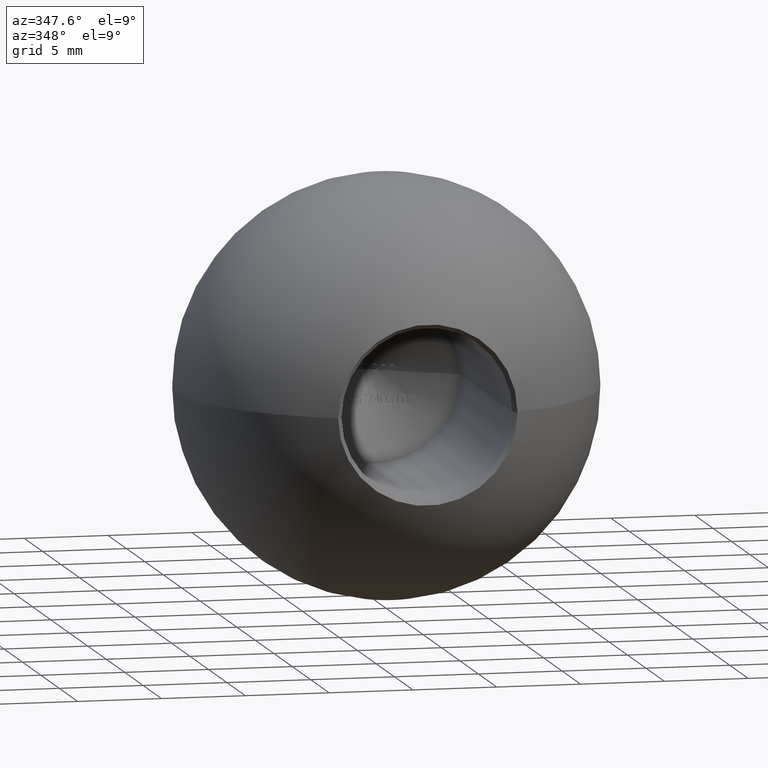
[diagram: clean part render]
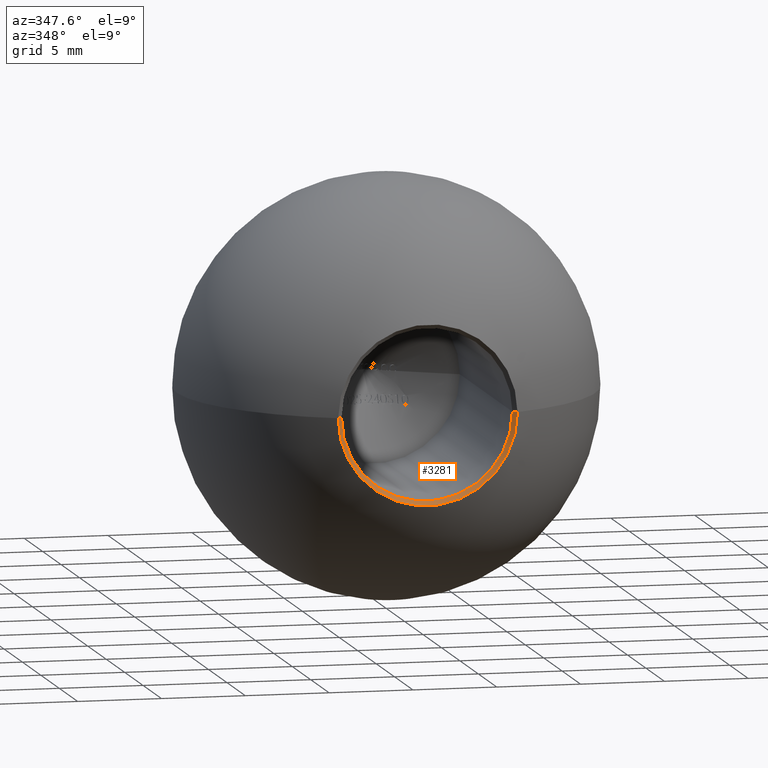
[diagram: same view with one face highlighted and labeled with its STEP entity id]
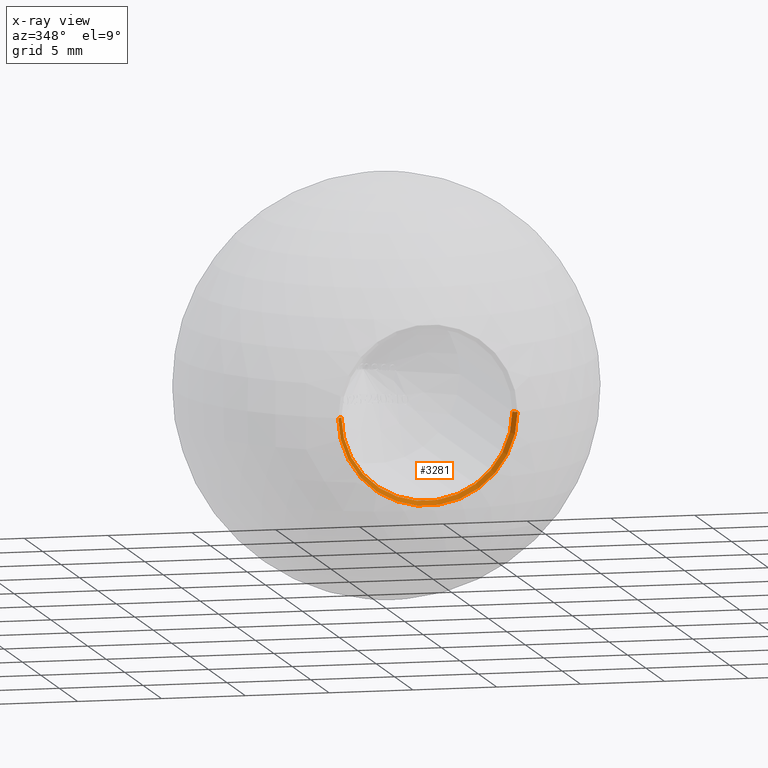
[diagram: x-ray of the same camera — body ghosted, the highlighted face saturated]
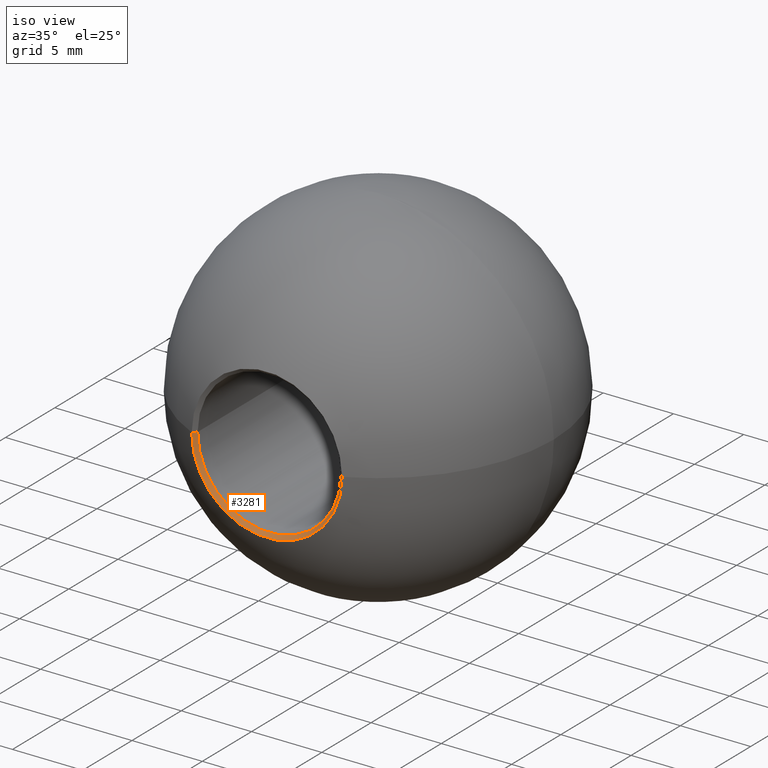
[diagram: same view with one face highlighted and labeled with its STEP entity id]
A machine part, auxiliary view. The second image highlights one B-rep face of the part: STEP entity #3281.
The next image is the same camera in x-ray: the body ghosted, the highlighted face saturated — about 0% of this face is hidden behind the body in this view.
A second angle (iso view) of the same face is appended — the face is thin or edge-on in the first view.
In plain terms, the highlighted conical surface has half-angle 45 deg.
Its self-contained STEP definition (entity closure, byte-faithful):
#258 = CARTESIAN_POINT ( 'NONE',  ( -5.100000000000003200, -11.04723417478808600, 6.398779525544925700E-016 ) ) ;
#396 = DIRECTION ( 'NONE',  ( -4.583387323490006000E-019, -1.000000000000000000, -0.0000000000000000000 ) ) ;
#1581 = CARTESIAN_POINT ( 'NONE',  ( -1.090719414508469100E-017, -11.29723417478809300, 0.0000000000000000000 ) ) ;
#2239 = VERTEX_POINT ( 'NONE', #10583 ) ;
#3281 = ADVANCED_FACE ( 'NONE', ( #3887 ), #9248, .F. ) ;
#3524 = VERTEX_POINT ( 'NONE', #10489 ) ;
#3715 = DIRECTION ( 'NONE',  ( 1.000000000000000000, 0.0000000000000000000, 0.0000000000000000000 ) ) ;
#3887 = FACE_OUTER_BOUND ( 'NONE', #12897, .T. ) ;
#3945 = CIRCLE ( 'NONE', #9625, 5.350000000000003200 ) ;
#5031 = CARTESIAN_POINT ( 'NONE',  ( 5.350000000000003200, -11.29723417478809300, 0.0000000000000000000 ) ) ;
#5112 = LINE ( 'NONE', #10553, #12752 ) ;
#5277 = DIRECTION ( 'NONE',  ( 0.7071067811865376900, -0.7071067811865574500, 0.0000000000000000000 ) ) ;
#6885 = CARTESIAN_POINT ( 'NONE',  ( -1.079260946199743600E-017, -11.04723417478808600, 0.0000000000000000000 ) ) ;
#6913 = VECTOR ( 'NONE', #8917, 999.9999999999998900 ) ;
#7570 = ORIENTED_EDGE ( 'NONE', *, *, #11262, .F. ) ;
#8544 = AXIS2_PLACEMENT_3D ( 'NONE', #6885, #11067, #12101 ) ;
#8576 = CARTESIAN_POINT ( 'NONE',  ( -1.079260946199743600E-017, -11.04723417478808600, 0.0000000000000000000 ) ) ;
#8851 = LINE ( 'NONE', #9635, #6913 ) ;
#8917 = DIRECTION ( 'NONE',  ( -0.7071067811865376900, -0.7071067811865574500, 8.659560562354813300E-017 ) ) ;
#9248 = CONICAL_SURFACE ( 'NONE', #8544, 5.100000000000003200, 0.7853981633974344000 ) ;
#9566 = VERTEX_POINT ( 'NONE', #5031 ) ;
#9625 = AXIS2_PLACEMENT_3D ( 'NONE', #1581, #10909, #3715 ) ;
#9635 = CARTESIAN_POINT ( 'NONE',  ( -5.100000000000003200, -11.04723417478808600, 6.245698675651505800E-016 ) ) ;
#9720 = DIRECTION ( 'NONE',  ( 1.000000000000000000, 0.0000000000000000000, 0.0000000000000000000 ) ) ;
#9942 = EDGE_CURVE ( 'NONE', #11289, #3524, #8851, .T. ) ;
#10039 = ORIENTED_EDGE ( 'NONE', *, *, #11291, .F. ) ;
#10077 = ORIENTED_EDGE ( 'NONE', *, *, #9942, .T. ) ;
#10489 = CARTESIAN_POINT ( 'NONE',  ( -5.350000000000003200, -11.29723417478809300, 6.551860375438343600E-016 ) ) ;
#10553 = CARTESIAN_POINT ( 'NONE',  ( 5.100000000000003200, -11.04723417478808600, 0.0000000000000000000 ) ) ;
#10583 = CARTESIAN_POINT ( 'NONE',  ( 5.100000000000003200, -11.04723417478808600, 0.0000000000000000000 ) ) ;
#10909 = DIRECTION ( 'NONE',  ( -4.583387323490006000E-019, -1.000000000000000000, -0.0000000000000000000 ) ) ;
#11067 = DIRECTION ( 'NONE',  ( -4.583387323490006000E-019, -1.000000000000000000, -0.0000000000000000000 ) ) ;
#11077 = CIRCLE ( 'NONE', #12169, 5.100000000000003200 ) ;
#11262 = EDGE_CURVE ( 'NONE', #2239, #9566, #5112, .T. ) ;
#11289 = VERTEX_POINT ( 'NONE', #258 ) ;
#11291 = EDGE_CURVE ( 'NONE', #11289, #2239, #11077, .T. ) ;
#11377 = EDGE_CURVE ( 'NONE', #3524, #9566, #3945, .T. ) ;
#11749 = ORIENTED_EDGE ( 'NONE', *, *, #11377, .T. ) ;
#12101 = DIRECTION ( 'NONE',  ( 1.000000000000000000, 0.0000000000000000000, 0.0000000000000000000 ) ) ;
#12169 = AXIS2_PLACEMENT_3D ( 'NONE', #8576, #396, #9720 ) ;
#12752 = VECTOR ( 'NONE', #5277, 999.9999999999998900 ) ;
#12897 = EDGE_LOOP ( 'NONE', ( #10039, #10077, #11749, #7570 ) ) ;